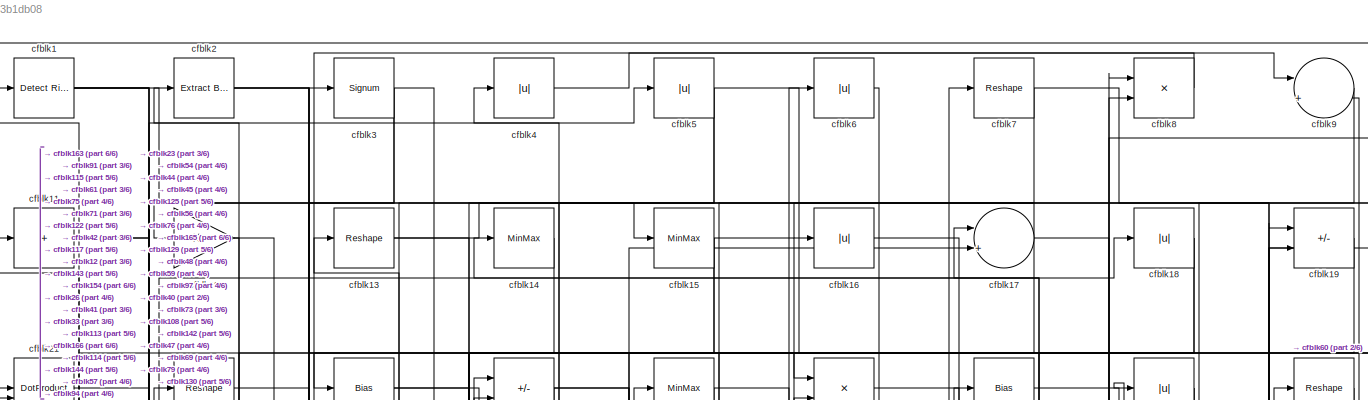
[diagram: root canvas - part 1/6, full width, top band]
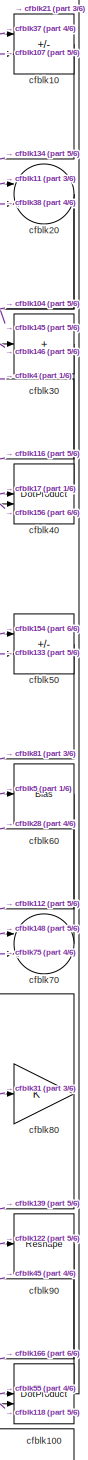
[diagram: root canvas - part 2/6, top right region]
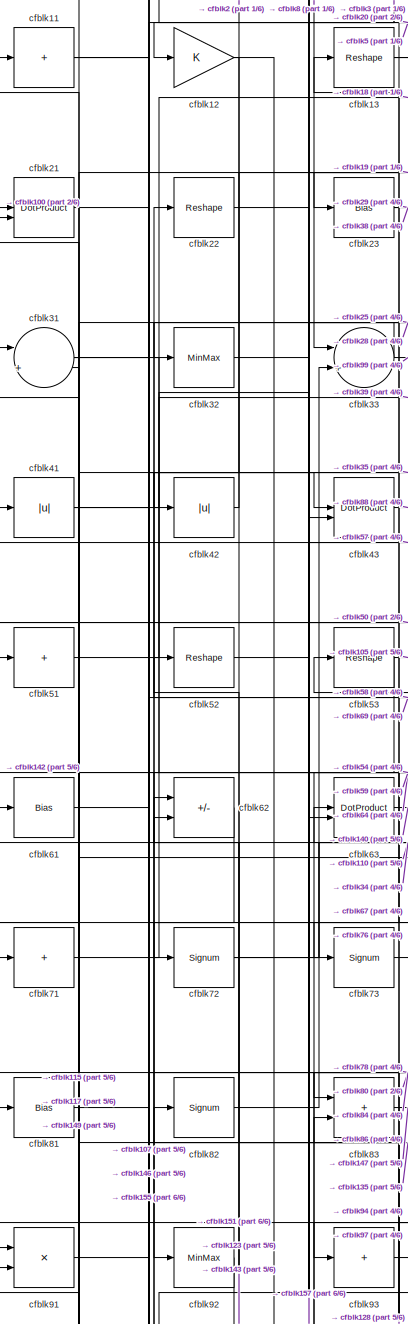
[diagram: root canvas - part 3/6, top left region]
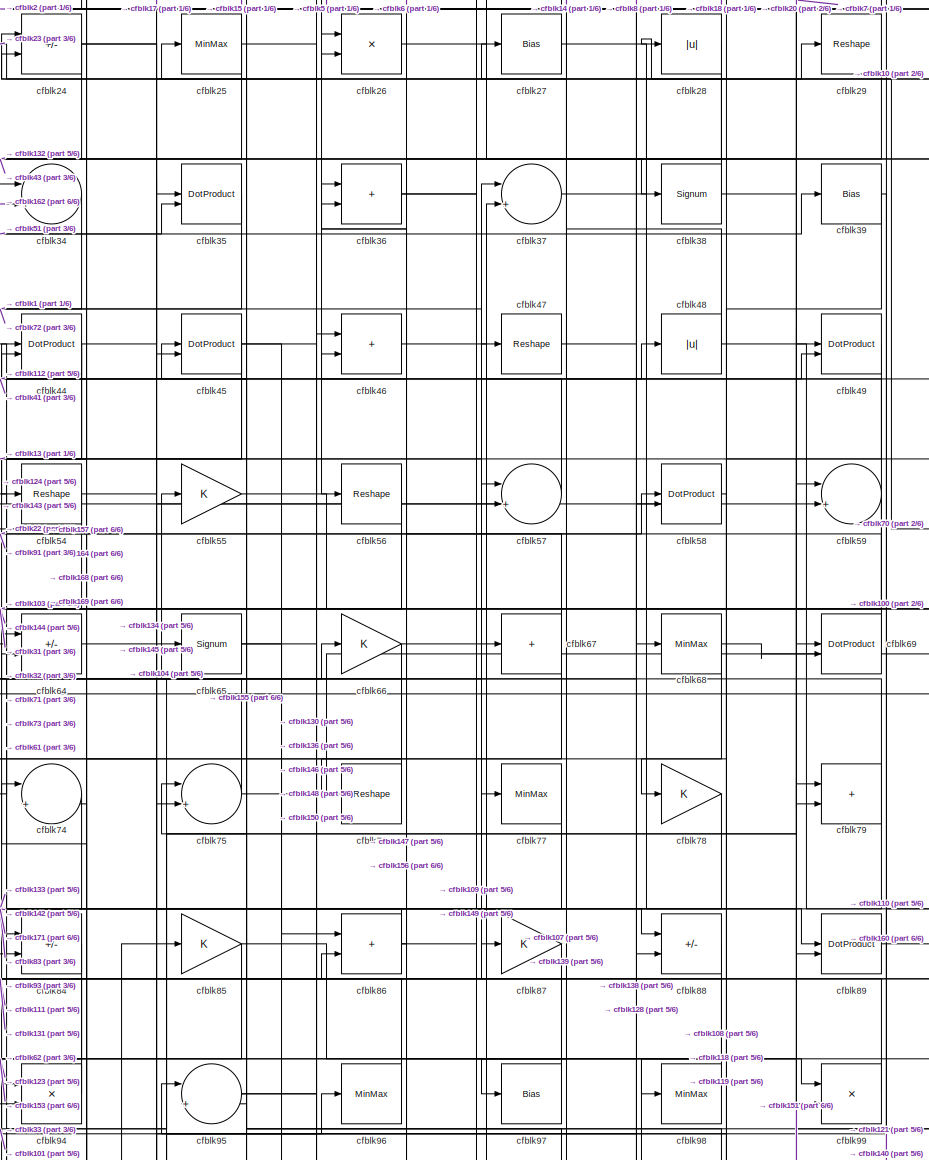
[diagram: root canvas - part 4/6, top center region]
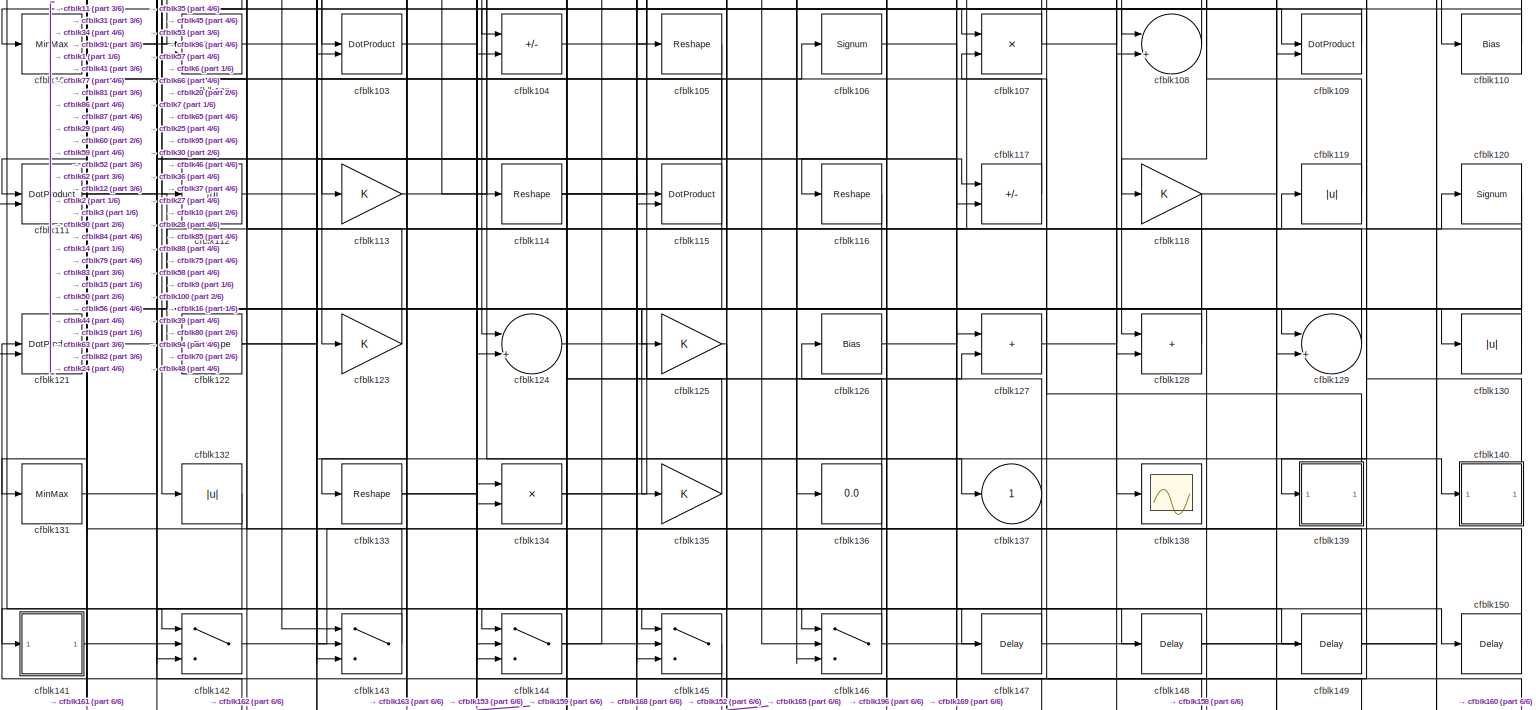
[diagram: root canvas - part 5/6, full width, middle band]
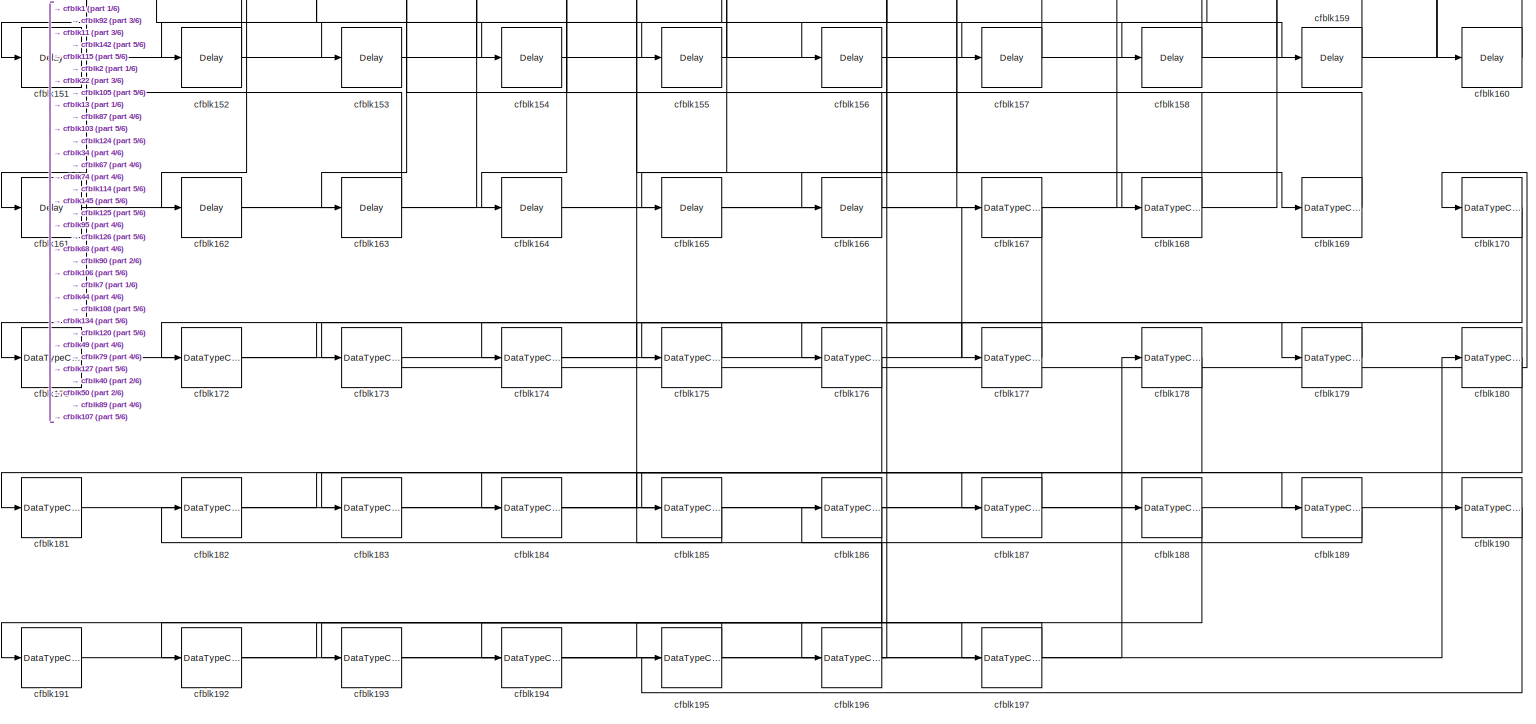
[diagram: root canvas - part 6/6, full width, bottom band]
MODEL slx_074313b1db08
KIND model
CONFIG AbsTol = auto
CONFIG EnableMultiTasking = off
CONFIG FixedStep = auto
CONFIG MaxStep = auto
CONFIG MinStep = auto
CONFIG RelTol = 1e-3
CONFIG SampleTimeConstraint = Unconstrained
CONFIG SolverName = VariableStepAuto
CONFIG StartTime = 0.0
CONFIG StopTime = 10.0
BLOCK [Reference] cfblk1  REF=hdlsllib/Logic and Bit
Operations/Detect Rise
Positive
  SourceBlock = hdlsllib/Logic and Bit\nOperations/Detect Rise\nPositive
  SourceType = Detect Rise Positive
BLOCK [Sum] cfblk10
  IconShape = rectangular
  Inputs = +-
BLOCK [DotProduct] cfblk100
  OutDataTypeStr = Inherit: Inherit via internal rule
BLOCK [MinMax] cfblk101
BLOCK [DotProduct] cfblk102
  OutDataTypeStr = Inherit: Inherit via internal rule
BLOCK [DotProduct] cfblk103
  OutDataTypeStr = Inherit: Inherit via internal rule
BLOCK [Sum] cfblk104
  IconShape = rectangular
  Inputs = +-
BLOCK [Reshape] cfblk105
BLOCK [Signum] cfblk106
BLOCK [Product] cfblk107
  Inputs = */
  RndMeth = Zero
  SaturateOnIntegerOverflow = on
BLOCK [Sum] cfblk108
  Inputs = |++
BLOCK [DotProduct] cfblk109
  OutDataTypeStr = Inherit: Inherit via internal rule
BLOCK [Sum] cfblk11
  IconShape = rectangular
  Inputs = +
BLOCK [Bias] cfblk110
  Bias = 0.0
  SaturateOnIntegerOverflow = off
BLOCK [DotProduct] cfblk111
  OutDataTypeStr = Inherit: Inherit via internal rule
BLOCK [Abs] cfblk112
  SaturateOnIntegerOverflow = off
BLOCK [Gain] cfblk113
BLOCK [Reshape] cfblk114
BLOCK [DotProduct] cfblk115
  OutDataTypeStr = Inherit: Inherit via internal rule
BLOCK [Reshape] cfblk116
BLOCK [Sum] cfblk117
  IconShape = rectangular
  Inputs = +-
BLOCK [Gain] cfblk118
BLOCK [Abs] cfblk119
  SaturateOnIntegerOverflow = off
BLOCK [Gain] cfblk12
BLOCK [Signum] cfblk120
BLOCK [DotProduct] cfblk121
  OutDataTypeStr = Inherit: Inherit via internal rule
BLOCK [Reshape] cfblk122
BLOCK [Gain] cfblk123
BLOCK [Sum] cfblk124
  Inputs = |++
BLOCK [Gain] cfblk125
BLOCK [Bias] cfblk126
  Bias = 0.0
  SaturateOnIntegerOverflow = off
BLOCK [Sum] cfblk127
  IconShape = rectangular
BLOCK [Sum] cfblk128
  IconShape = rectangular
BLOCK [Sum] cfblk129
  Inputs = |++
BLOCK [Reshape] cfblk13
BLOCK [Abs] cfblk130
  SaturateOnIntegerOverflow = off
BLOCK [MinMax] cfblk131
BLOCK [Abs] cfblk132
  SaturateOnIntegerOverflow = off
BLOCK [Reshape] cfblk133
BLOCK [Product] cfblk134
  Inputs = */
  RndMeth = Zero
  SaturateOnIntegerOverflow = on
BLOCK [Gain] cfblk135
BLOCK [Display] cfblk136
  Decimation = 1
BLOCK [Outport] cfblk137
  VectorParamsAs1DForOutWhenUnconnected = off
BLOCK [Scope] cfblk138
  Floating = off
  NumInputPorts = 1
  ScopeSpecificationString = Simulink.scopes.TimeScopeBlockCfg('CurrentConfiguration', extmgr.ConfigurationSet(extmgr.Configuration('Core','General UI',true),extmgr.Configuration('Core','Source UI',true),extmgr.Configuration('Sources','WiredSimulink',true,'DataLoggingVariableName','ScopeData2','DataLoggingSaveFormat','Array','DataLoggingLimitDataPoints',true,'DataLoggingDecimation','1'),extmgr.Configuration('Visuals','Time Do...<+868ch>
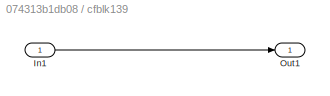
BLOCK [SubSystem] cfblk139
  LibrarySourceBlock = hdlsllib/Ports &\nSubsystems/Subsystem
BLOCK [Inport] cfblk139/In1
BLOCK [Outport] cfblk139/Out1
BLOCK [MinMax] cfblk14
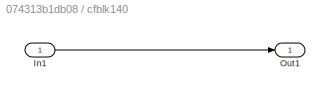
BLOCK [SubSystem] cfblk140
  LibrarySourceBlock = hdlsllib/Ports &\nSubsystems/Subsystem
BLOCK [Inport] cfblk140/In1
BLOCK [Outport] cfblk140/Out1
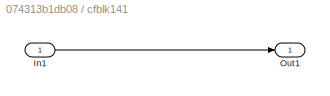
BLOCK [SubSystem] cfblk141
  LibrarySourceBlock = hdlsllib/Ports &\nSubsystems/Subsystem
BLOCK [Inport] cfblk141/In1
BLOCK [Outport] cfblk141/Out1
BLOCK [Switch] cfblk142
  InputSameDT = off
  SaturateOnIntegerOverflow = off
BLOCK [Switch] cfblk143
  InputSameDT = off
  SaturateOnIntegerOverflow = off
BLOCK [Switch] cfblk144
  InputSameDT = off
  SaturateOnIntegerOverflow = off
BLOCK [Switch] cfblk145
  InputSameDT = off
  SaturateOnIntegerOverflow = off
BLOCK [Switch] cfblk146
  InputSameDT = off
  SaturateOnIntegerOverflow = off
BLOCK [Delay] cfblk147
  InputPortMap = u0
  SampleTime = 1
BLOCK [Delay] cfblk148
  InputPortMap = u0
  SampleTime = 1
BLOCK [Delay] cfblk149
  InputPortMap = u0
  SampleTime = 1
BLOCK [MinMax] cfblk15
BLOCK [Delay] cfblk150
  InputPortMap = u0
  SampleTime = 1
BLOCK [Delay] cfblk151
  InputPortMap = u0
  SampleTime = 1
BLOCK [Delay] cfblk152
  InputPortMap = u0
  SampleTime = 1
BLOCK [Delay] cfblk153
  InputPortMap = u0
  SampleTime = 1
BLOCK [Delay] cfblk154
  InputPortMap = u0
  SampleTime = 1
BLOCK [Delay] cfblk155
  InputPortMap = u0
  SampleTime = 1
BLOCK [Delay] cfblk156
  InputPortMap = u0
  SampleTime = 1
BLOCK [Delay] cfblk157
  InputPortMap = u0
  SampleTime = 1
BLOCK [Delay] cfblk158
  InputPortMap = u0
  SampleTime = 1
BLOCK [Delay] cfblk159
  InputPortMap = u0
  SampleTime = 1
BLOCK [Abs] cfblk16
  SaturateOnIntegerOverflow = off
BLOCK [Delay] cfblk160
  InputPortMap = u0
  SampleTime = 1
BLOCK [Delay] cfblk161
  InputPortMap = u0
  SampleTime = 1
BLOCK [Delay] cfblk162
  InputPortMap = u0
  SampleTime = 1
BLOCK [Delay] cfblk163
  InputPortMap = u0
  SampleTime = 1
BLOCK [Delay] cfblk164
  InputPortMap = u0
  SampleTime = 1
BLOCK [Delay] cfblk165
  InputPortMap = u0
  SampleTime = 1
BLOCK [Delay] cfblk166
  InputPortMap = u0
  SampleTime = 1
BLOCK [DataTypeConversion] cfblk167
  RndMeth = Floor
  SaturateOnIntegerOverflow = off
BLOCK [DataTypeConversion] cfblk168
  OutDataTypeStr = uint8
  RndMeth = Floor
  SaturateOnIntegerOverflow = off
BLOCK [DataTypeConversion] cfblk169
  OutDataTypeStr = uint8
  RndMeth = Floor
  SaturateOnIntegerOverflow = off
BLOCK [Sum] cfblk17
  Inputs = |++
BLOCK [DataTypeConversion] cfblk170
  RndMeth = Floor
  SaturateOnIntegerOverflow = off
BLOCK [DataTypeConversion] cfblk171
  OutDataTypeStr = uint8
  RndMeth = Floor
  SaturateOnIntegerOverflow = off
BLOCK [DataTypeConversion] cfblk172
  RndMeth = Floor
  SaturateOnIntegerOverflow = off
BLOCK [DataTypeConversion] cfblk173
  OutDataTypeStr = uint8
  RndMeth = Floor
  SaturateOnIntegerOverflow = off
BLOCK [DataTypeConversion] cfblk174
  RndMeth = Floor
  SaturateOnIntegerOverflow = off
BLOCK [DataTypeConversion] cfblk175
  OutDataTypeStr = uint8
  RndMeth = Floor
  SaturateOnIntegerOverflow = off
BLOCK [DataTypeConversion] cfblk176
  RndMeth = Floor
  SaturateOnIntegerOverflow = off
BLOCK [DataTypeConversion] cfblk177
  OutDataTypeStr = uint8
  RndMeth = Floor
  SaturateOnIntegerOverflow = off
BLOCK [DataTypeConversion] cfblk178
  RndMeth = Floor
  SaturateOnIntegerOverflow = off
BLOCK [DataTypeConversion] cfblk179
  OutDataTypeStr = uint8
  RndMeth = Floor
  SaturateOnIntegerOverflow = off
BLOCK [Abs] cfblk18
  SaturateOnIntegerOverflow = off
BLOCK [DataTypeConversion] cfblk180
  RndMeth = Floor
  SaturateOnIntegerOverflow = off
BLOCK [DataTypeConversion] cfblk181
  OutDataTypeStr = uint8
  RndMeth = Floor
  SaturateOnIntegerOverflow = off
BLOCK [DataTypeConversion] cfblk182
  RndMeth = Floor
  SaturateOnIntegerOverflow = off
BLOCK [DataTypeConversion] cfblk183
  OutDataTypeStr = uint8
  RndMeth = Floor
  SaturateOnIntegerOverflow = off
BLOCK [DataTypeConversion] cfblk184
  RndMeth = Floor
  SaturateOnIntegerOverflow = off
BLOCK [DataTypeConversion] cfblk185
  OutDataTypeStr = uint8
  RndMeth = Floor
  SaturateOnIntegerOverflow = off
BLOCK [DataTypeConversion] cfblk186
  RndMeth = Floor
  SaturateOnIntegerOverflow = off
BLOCK [DataTypeConversion] cfblk187
  OutDataTypeStr = uint8
  RndMeth = Floor
  SaturateOnIntegerOverflow = off
BLOCK [DataTypeConversion] cfblk188
  RndMeth = Floor
  SaturateOnIntegerOverflow = off
BLOCK [DataTypeConversion] cfblk189
  OutDataTypeStr = uint8
  RndMeth = Floor
  SaturateOnIntegerOverflow = off
BLOCK [Sum] cfblk19
  IconShape = rectangular
  Inputs = +-
BLOCK [DataTypeConversion] cfblk190
  RndMeth = Floor
  SaturateOnIntegerOverflow = off
BLOCK [DataTypeConversion] cfblk191
  OutDataTypeStr = uint8
  RndMeth = Floor
  SaturateOnIntegerOverflow = off
BLOCK [DataTypeConversion] cfblk192
  RndMeth = Floor
  SaturateOnIntegerOverflow = off
BLOCK [DataTypeConversion] cfblk193
  OutDataTypeStr = uint8
  RndMeth = Floor
  SaturateOnIntegerOverflow = off
BLOCK [DataTypeConversion] cfblk194
  RndMeth = Floor
  SaturateOnIntegerOverflow = off
BLOCK [DataTypeConversion] cfblk195
  OutDataTypeStr = uint8
  RndMeth = Floor
  SaturateOnIntegerOverflow = off
BLOCK [DataTypeConversion] cfblk196
  RndMeth = Floor
  SaturateOnIntegerOverflow = off
BLOCK [DataTypeConversion] cfblk197
  OutDataTypeStr = uint8
  RndMeth = Floor
  SaturateOnIntegerOverflow = off
BLOCK [Reference] cfblk2  REF=simulink/Logic and Bit
Operations/Extract Bits
  LibrarySourceBlock = hdlsllib/Logic and Bit\nOperations/Extract Bits
  SourceBlock = simulink/Logic and Bit\nOperations/Extract Bits
  SourceType = Extract Bits
BLOCK [Sum] cfblk20
  Inputs = |++
BLOCK [DotProduct] cfblk21
  OutDataTypeStr = Inherit: Inherit via internal rule
BLOCK [Reshape] cfblk22
BLOCK [Bias] cfblk23
  Bias = 0.0
  SaturateOnIntegerOverflow = off
BLOCK [Sum] cfblk24
  IconShape = rectangular
  Inputs = +-
BLOCK [MinMax] cfblk25
BLOCK [Product] cfblk26
  Inputs = */
  RndMeth = Zero
  SaturateOnIntegerOverflow = on
BLOCK [Bias] cfblk27
  Bias = 0.0
  SaturateOnIntegerOverflow = off
BLOCK [Abs] cfblk28
  SaturateOnIntegerOverflow = off
BLOCK [Reshape] cfblk29
BLOCK [Signum] cfblk3
BLOCK [Sum] cfblk30
  IconShape = rectangular
  Inputs = +
BLOCK [Sum] cfblk31
  Inputs = |++
BLOCK [MinMax] cfblk32
BLOCK [Sum] cfblk33
  Inputs = |++
BLOCK [Sum] cfblk34
  Inputs = |++
BLOCK [DotProduct] cfblk35
  OutDataTypeStr = Inherit: Inherit via internal rule
BLOCK [Sum] cfblk36
  IconShape = rectangular
BLOCK [Sum] cfblk37
  Inputs = |++
BLOCK [Signum] cfblk38
BLOCK [Bias] cfblk39
  Bias = 0.0
  SaturateOnIntegerOverflow = off
BLOCK [Abs] cfblk4
  SaturateOnIntegerOverflow = off
BLOCK [DotProduct] cfblk40
  OutDataTypeStr = Inherit: Inherit via internal rule
BLOCK [Abs] cfblk41
  SaturateOnIntegerOverflow = off
BLOCK [Abs] cfblk42
  SaturateOnIntegerOverflow = off
BLOCK [DotProduct] cfblk43
  OutDataTypeStr = Inherit: Inherit via internal rule
BLOCK [DotProduct] cfblk44
  OutDataTypeStr = Inherit: Inherit via internal rule
BLOCK [DotProduct] cfblk45
  OutDataTypeStr = Inherit: Inherit via internal rule
BLOCK [Sum] cfblk46
  IconShape = rectangular
BLOCK [Reshape] cfblk47
BLOCK [Abs] cfblk48
  SaturateOnIntegerOverflow = off
BLOCK [DotProduct] cfblk49
  OutDataTypeStr = Inherit: Inherit via internal rule
BLOCK [Abs] cfblk5
  SaturateOnIntegerOverflow = off
BLOCK [Sum] cfblk50
  IconShape = rectangular
  Inputs = +-
BLOCK [Sum] cfblk51
  IconShape = rectangular
  Inputs = +
BLOCK [Reshape] cfblk52
BLOCK [Reshape] cfblk53
BLOCK [Reshape] cfblk54
BLOCK [Gain] cfblk55
BLOCK [Reshape] cfblk56
BLOCK [Sum] cfblk57
  Inputs = |++
BLOCK [DotProduct] cfblk58
  OutDataTypeStr = Inherit: Inherit via internal rule
BLOCK [Sum] cfblk59
  Inputs = |++
BLOCK [Abs] cfblk6
  SaturateOnIntegerOverflow = off
BLOCK [Bias] cfblk60
  Bias = 0.0
  SaturateOnIntegerOverflow = off
BLOCK [Bias] cfblk61
  Bias = 0.0
  SaturateOnIntegerOverflow = off
BLOCK [Sum] cfblk62
  IconShape = rectangular
  Inputs = +-
BLOCK [DotProduct] cfblk63
  OutDataTypeStr = Inherit: Inherit via internal rule
BLOCK [Sum] cfblk64
  IconShape = rectangular
  Inputs = +-
BLOCK [Signum] cfblk65
BLOCK [Gain] cfblk66
BLOCK [Sum] cfblk67
  IconShape = rectangular
  Inputs = +
BLOCK [MinMax] cfblk68
BLOCK [DotProduct] cfblk69
  OutDataTypeStr = Inherit: Inherit via internal rule
BLOCK [Reshape] cfblk7
BLOCK [Sum] cfblk70
  Inputs = |++
BLOCK [Sum] cfblk71
  IconShape = rectangular
  Inputs = +
BLOCK [Signum] cfblk72
BLOCK [Signum] cfblk73
BLOCK [Sum] cfblk74
  Inputs = |++
BLOCK [Sum] cfblk75
  Inputs = |++
BLOCK [Reshape] cfblk76
BLOCK [MinMax] cfblk77
BLOCK [Gain] cfblk78
BLOCK [Sum] cfblk79
  IconShape = rectangular
BLOCK [Product] cfblk8
  Inputs = */
  RndMeth = Zero
  SaturateOnIntegerOverflow = on
BLOCK [Gain] cfblk80
BLOCK [Bias] cfblk81
  Bias = 0.0
  SaturateOnIntegerOverflow = off
BLOCK [Signum] cfblk82
BLOCK [Sum] cfblk83
  IconShape = rectangular
BLOCK [Sum] cfblk84
  IconShape = rectangular
  Inputs = +-
BLOCK [Gain] cfblk85
BLOCK [Sum] cfblk86
  IconShape = rectangular
BLOCK [Gain] cfblk87
BLOCK [Sum] cfblk88
  IconShape = rectangular
  Inputs = +-
BLOCK [DotProduct] cfblk89
  OutDataTypeStr = Inherit: Inherit via internal rule
BLOCK [Sum] cfblk9
  Inputs = |++
BLOCK [Reshape] cfblk90
BLOCK [Product] cfblk91
  Inputs = */
  RndMeth = Zero
  SaturateOnIntegerOverflow = on
BLOCK [MinMax] cfblk92
BLOCK [Sum] cfblk93
  IconShape = rectangular
  Inputs = +
BLOCK [Product] cfblk94
  Inputs = */
  RndMeth = Zero
  SaturateOnIntegerOverflow = on
BLOCK [Sum] cfblk95
  Inputs = |++
BLOCK [MinMax] cfblk96
BLOCK [Bias] cfblk97
  Bias = 0.0
  SaturateOnIntegerOverflow = off
BLOCK [MinMax] cfblk98
BLOCK [Product] cfblk99
  Inputs = */
  RndMeth = Zero
  SaturateOnIntegerOverflow = on
NET cfblk100:1 -> cfblk21:1, cfblk45:1
NET cfblk101:1 -> cfblk117:1, cfblk59:1
LINE cfblk102:1 -> cfblk137:1
LINE cfblk103:1 -> cfblk159:1
LINE cfblk104:1 -> cfblk58:2
LINE cfblk105:1 -> cfblk163:1
LINE cfblk106:1 -> cfblk169:1
NET cfblk107:1 -> cfblk10:2, cfblk44:1
LINE cfblk108:1 -> cfblk75:1
LINE cfblk109:1 -> cfblk102:1
LINE cfblk10:1 -> cfblk134:2
NET cfblk110:1 -> cfblk104:1, cfblk63:1
NET cfblk111:1 -> cfblk129:1, cfblk86:2
LINE cfblk112:1 -> cfblk48:1
LINE cfblk113:1 -> cfblk19:1
NET cfblk114:1 -> cfblk146:3, cfblk168:1, cfblk6:1
NET cfblk115:1 -> cfblk162:1, cfblk31:2
LINE cfblk116:1 -> cfblk135:1
LINE cfblk117:1 -> cfblk11:1
NET cfblk118:1 -> cfblk100:2, cfblk131:1
LINE cfblk119:1 -> cfblk95:1
NET cfblk11:1 -> cfblk155:1, cfblk20:1
NET cfblk120:1 -> cfblk144:1, cfblk158:1, cfblk161:1
LINE cfblk121:1 -> cfblk37:2
NET cfblk122:1 -> cfblk106:1, cfblk90:1
LINE cfblk123:1 -> cfblk52:1
LINE cfblk124:1 -> cfblk127:2
LINE cfblk125:1 -> cfblk165:1
LINE cfblk126:1 -> cfblk120:1
LINE cfblk127:1 -> cfblk119:1
LINE cfblk128:1 -> cfblk83:2
LINE cfblk129:1 -> cfblk102:2
NET cfblk12:1 -> cfblk143:1, cfblk42:1
LINE cfblk130:1 -> cfblk9:2
LINE cfblk131:1 -> cfblk87:1
LINE cfblk132:1 -> cfblk141:1
NET cfblk133:1 -> cfblk50:2, cfblk59:2
NET cfblk134:1 -> cfblk57:2, cfblk66:1
LINE cfblk135:1 -> cfblk82:1
LINE cfblk139/In1:1 -> cfblk139/Out1:1
LINE cfblk139:1 -> cfblk27:1
NET cfblk13:1 -> cfblk15:1, cfblk57:1
LINE cfblk140/In1:1 -> cfblk140/Out1:1
LINE cfblk140:1 -> cfblk94:1
LINE cfblk141/In1:1 -> cfblk141/Out1:1
LINE cfblk141:1 -> cfblk145:2
LINE cfblk142:1 -> cfblk19:2
LINE cfblk143:1 -> cfblk62:2
NET cfblk144:1 -> cfblk85:1, cfblk96:1
LINE cfblk145:1 -> cfblk152:1
NET cfblk146:1 -> cfblk30:1, cfblk53:1
LINE cfblk147:1 -> cfblk46:2
LINE cfblk148:1 -> cfblk70:1
LINE cfblk149:1 -> cfblk91:2
LINE cfblk14:1 -> cfblk113:1
LINE cfblk150:1 -> cfblk35:1
LINE cfblk151:1 -> cfblk79:1
LINE cfblk152:1 -> cfblk142:2
LINE cfblk153:1 -> cfblk124:2
LINE cfblk154:1 -> cfblk50:1
LINE cfblk155:1 -> cfblk95:2
LINE cfblk156:1 -> cfblk40:2
LINE cfblk157:1 -> cfblk44:2
LINE cfblk158:1 -> cfblk134:1
LINE cfblk159:1 -> cfblk127:1
NET cfblk15:1 -> cfblk122:1, cfblk144:2, cfblk56:1
LINE cfblk160:1 -> cfblk107:2
LINE cfblk161:1 -> cfblk108:2
LINE cfblk162:1 -> cfblk34:2
LINE cfblk163:1 -> cfblk1:1
LINE cfblk164:1 -> cfblk49:1
LINE cfblk165:1 -> cfblk7:1
LINE cfblk166:1 -> cfblk13:1
LINE cfblk167:1 -> cfblk173:1
LINE cfblk168:1 -> cfblk74:1
LINE cfblk169:1 -> cfblk74:2
LINE cfblk16:1 -> cfblk129:2
LINE cfblk170:1 -> cfblk175:1
LINE cfblk171:1 -> cfblk167:1
LINE cfblk172:1 -> cfblk177:1
LINE cfblk173:1 -> cfblk170:1
LINE cfblk174:1 -> cfblk179:1
LINE cfblk175:1 -> cfblk172:1
LINE cfblk176:1 -> cfblk181:1
LINE cfblk177:1 -> cfblk174:1
LINE cfblk178:1 -> cfblk183:1
LINE cfblk179:1 -> cfblk176:1
NET cfblk17:1 -> cfblk16:1, cfblk40:1, cfblk94:2
LINE cfblk180:1 -> cfblk185:1
LINE cfblk181:1 -> cfblk178:1
LINE cfblk182:1 -> cfblk187:1
LINE cfblk183:1 -> cfblk180:1
LINE cfblk184:1 -> cfblk189:1
LINE cfblk185:1 -> cfblk182:1
LINE cfblk186:1 -> cfblk191:1
LINE cfblk187:1 -> cfblk184:1
LINE cfblk188:1 -> cfblk193:1
LINE cfblk189:1 -> cfblk186:1
NET cfblk18:1 -> cfblk45:2, cfblk97:1
LINE cfblk190:1 -> cfblk195:1
LINE cfblk191:1 -> cfblk188:1
LINE cfblk192:1 -> cfblk197:1
LINE cfblk193:1 -> cfblk190:1
LINE cfblk194:1 -> cfblk196:1
LINE cfblk195:1 -> cfblk192:1
NET cfblk196:1 -> cfblk115:1, cfblk126:1
LINE cfblk197:1 -> cfblk194:1
LINE cfblk19:1 -> cfblk91:1
NET cfblk1:1 -> cfblk115:2, cfblk47:1, cfblk75:2, cfblk79:2
NET cfblk20:1 -> cfblk104:2, cfblk145:1
LINE cfblk21:1 -> cfblk43:1
LINE cfblk22:1 -> cfblk157:1
NET cfblk23:1 -> cfblk29:1, cfblk38:1
NET cfblk24:1 -> cfblk103:2, cfblk109:2, cfblk89:2
NET cfblk25:1 -> cfblk150:1, cfblk43:2
LINE cfblk26:1 -> cfblk68:1
LINE cfblk27:1 -> cfblk89:1
NET cfblk28:1 -> cfblk128:2, cfblk51:1
LINE cfblk29:1 -> cfblk132:1
NET cfblk2:1 -> cfblk117:2, cfblk154:1, cfblk26:1
LINE cfblk30:1 -> cfblk116:1
NET cfblk31:1 -> cfblk80:1, cfblk84:1
LINE cfblk32:1 -> cfblk64:1
NET cfblk33:1 -> cfblk32:1, cfblk99:2
LINE cfblk34:1 -> cfblk101:1
LINE cfblk35:1 -> cfblk72:1
NET cfblk36:1 -> cfblk149:1, cfblk99:1
LINE cfblk37:1 -> cfblk10:1
NET cfblk38:1 -> cfblk20:2, cfblk24:1
NET cfblk39:1 -> cfblk121:1, cfblk98:1
NET cfblk3:1 -> cfblk114:1, cfblk12:1, cfblk143:2
LINE cfblk40:1 -> cfblk4:1
NET cfblk41:1 -> cfblk146:1, cfblk3:1
LINE cfblk42:1 -> cfblk2:1
LINE cfblk43:1 -> cfblk88:1
NET cfblk44:1 -> cfblk121:2, cfblk124:1, cfblk143:3, cfblk17:2
NET cfblk45:1 -> cfblk145:3, cfblk148:1, cfblk84:2, cfblk86:1
LINE cfblk46:1 -> cfblk49:2
LINE cfblk47:1 -> cfblk8:2
NET cfblk48:1 -> cfblk110:1, cfblk14:1
LINE cfblk49:1 -> cfblk78:1
LINE cfblk4:1 -> cfblk9:1
LINE cfblk50:1 -> cfblk81:1
LINE cfblk51:1 -> cfblk39:1
LINE cfblk52:1 -> cfblk63:2
NET cfblk53:1 -> cfblk105:1, cfblk142:1
NET cfblk54:1 -> cfblk26:2, cfblk71:1
LINE cfblk55:1 -> cfblk100:1
NET cfblk56:1 -> cfblk103:1, cfblk144:3
LINE cfblk57:1 -> cfblk41:1
LINE cfblk58:1 -> cfblk118:1
NET cfblk59:1 -> cfblk17:1, cfblk73:1, cfblk88:2
NET cfblk5:1 -> cfblk23:1, cfblk54:1, cfblk60:1
LINE cfblk60:1 -> cfblk112:1
LINE cfblk61:1 -> cfblk5:1
LINE cfblk62:1 -> cfblk92:1
LINE cfblk63:1 -> cfblk140:1
LINE cfblk64:1 -> cfblk55:1
NET cfblk65:1 -> cfblk136:1, cfblk146:2
NET cfblk66:1 -> cfblk111:2, cfblk77:1
NET cfblk67:1 -> cfblk164:1, cfblk36:2
NET cfblk68:1 -> cfblk156:1, cfblk69:2
LINE cfblk69:1 -> cfblk22:1
LINE cfblk6:1 -> cfblk76:1
LINE cfblk70:1 -> cfblk28:1
LINE cfblk71:1 -> cfblk18:1
NET cfblk72:1 -> cfblk34:1, cfblk67:1
LINE cfblk73:1 -> cfblk8:1
LINE cfblk74:1 -> cfblk171:1
NET cfblk75:1 -> cfblk64:2, cfblk70:2
LINE cfblk76:1 -> cfblk61:1
LINE cfblk77:1 -> cfblk142:3
LINE cfblk78:1 -> cfblk93:1
NET cfblk79:1 -> cfblk133:1, cfblk65:1
NET cfblk7:1 -> cfblk125:1, cfblk69:1
NET cfblk80:1 -> cfblk139:1, cfblk21:2
LINE cfblk81:1 -> cfblk107:1
LINE cfblk82:1 -> cfblk33:2
LINE cfblk83:1 -> cfblk147:1
LINE cfblk84:1 -> cfblk123:1
NET cfblk85:1 -> cfblk111:1, cfblk138:1
NET cfblk86:1 -> cfblk109:1, cfblk36:1, cfblk83:1
LINE cfblk87:1 -> cfblk153:1
LINE cfblk88:1 -> cfblk128:1
LINE cfblk89:1 -> cfblk160:1
LINE cfblk8:1 -> cfblk33:1
LINE cfblk90:1 -> cfblk166:1
LINE cfblk91:1 -> cfblk58:1
LINE cfblk92:1 -> cfblk151:1
LINE cfblk93:1 -> cfblk35:2
LINE cfblk94:1 -> cfblk62:1
NET cfblk95:1 -> cfblk130:1, cfblk46:1
LINE cfblk96:1 -> cfblk24:2
LINE cfblk97:1 -> cfblk31:1
LINE cfblk98:1 -> cfblk37:1
LINE cfblk99:1 -> cfblk25:1
LINE cfblk9:1 -> cfblk108:1
note: NET lines group one-source signal fan-out (src -> all destinations, sorted); 1:1 wires keep LINE
